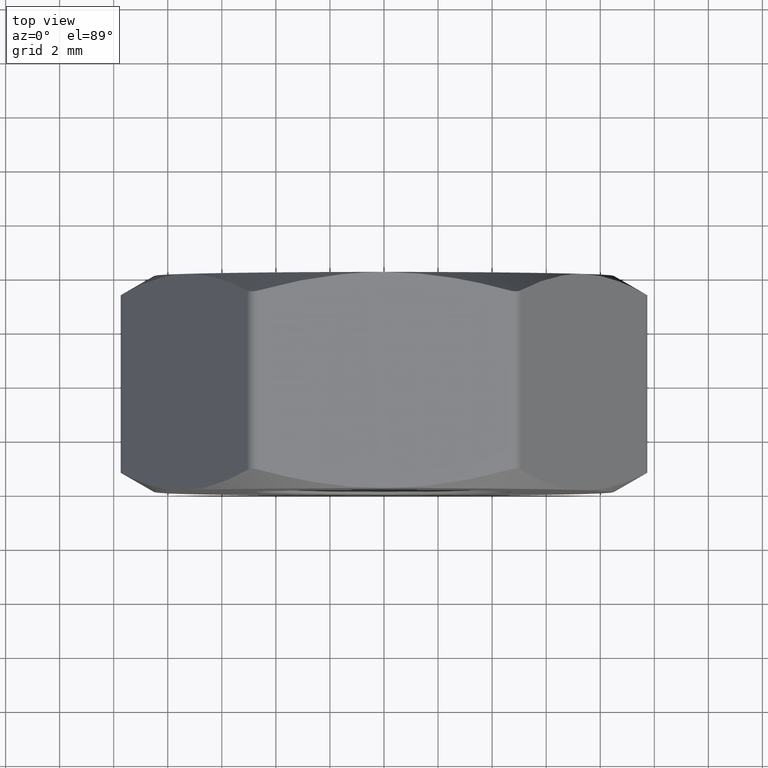
[diagram: clean part render]
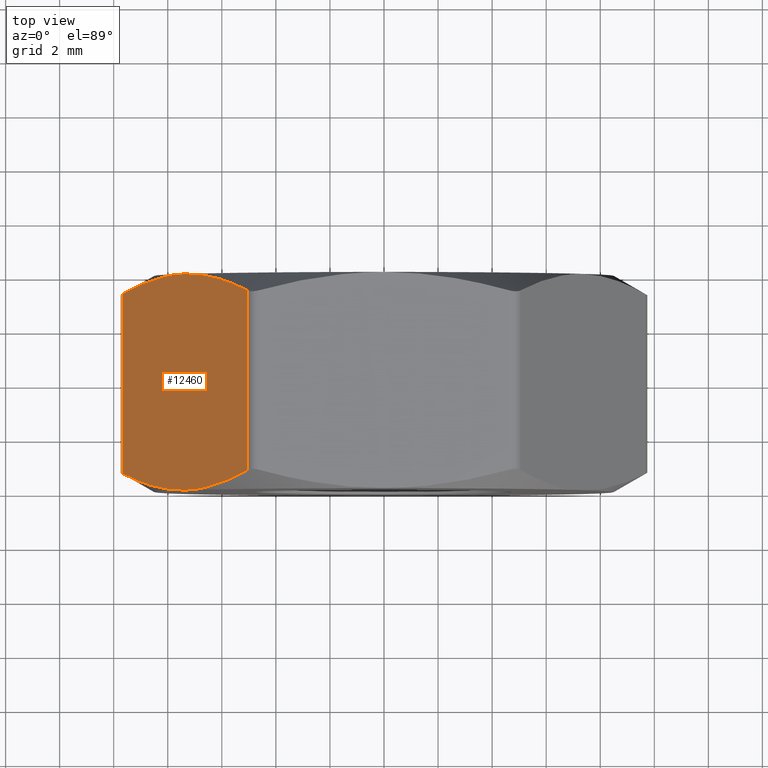
[diagram: same view with one face highlighted and labeled with its STEP entity id]
A machine part, top view. The second image highlights one B-rep face of the part: STEP entity #12460.
In plain terms, the highlighted planar face has unit normal (0.866, 0, -0.5).
Its self-contained STEP definition (entity closure, byte-faithful):
#85 = EDGE_CURVE ( 'NONE', #9155, #127, #4038, .T. ) ;
#97 = LINE ( 'NONE', #2320, #5485 ) ;
#127 = VERTEX_POINT ( 'NONE', #8834 ) ;
#508 = CARTESIAN_POINT ( 'NONE',  ( -5.051814855409220200, -3.322278594739817200, 8.250000000000000000 ) ) ;
#1096 = CARTESIAN_POINT ( 'NONE',  ( -9.814954576223636100, 4.000000000000000000, -3.519792685048961300E-015 ) ) ;
#1566 = CARTESIAN_POINT ( 'NONE',  ( -8.142893031566083900, 3.922654203673382200, 2.896095548728974600 ) ) ;
#1860 = DIRECTION ( 'NONE',  ( -0.0000000000000000000, 1.000000000000000000, -0.0000000000000000000 ) ) ;
#2180 = VERTEX_POINT ( 'NONE', #14304 ) ;
#2320 = CARTESIAN_POINT ( 'NONE',  ( -9.670617008926228700, 4.000000000000000000, 0.2499999999999972500 ) ) ;
#2846 = ORIENTED_EDGE ( 'NONE', *, *, #3013, .T. ) ;
#3013 = EDGE_CURVE ( 'NONE', #2180, #7835, #97, .T. ) ;
#3082 = ORIENTED_EDGE ( 'NONE', *, *, #3139, .T. ) ;
#3139 = EDGE_CURVE ( 'NONE', #8929, #9155, #12425, .T. ) ;
#3518 = CARTESIAN_POINT ( 'NONE',  ( -8.911804254728645300, -3.701163182834507300, 1.564302243701488600 ) ) ;
#3599 = CARTESIAN_POINT ( 'NONE',  ( -7.361215932167729300, 4.000000000000000000, 4.250000000000000000 ) ) ;
#4020 = CARTESIAN_POINT ( 'NONE',  ( -5.051814855409220200, 4.000000000000000000, 8.250000000000000000 ) ) ;
#4038 = B_SPLINE_CURVE_WITH_KNOTS ( 'NONE', 3,
 ( #14477, #10873, #13147, #7021, #8524, #3599 ),
 .UNSPECIFIED., .F., .F.,
 ( 4, 2, 4 ),
 ( 0.0002975640376514574200, 0.002631682780503386500, 0.004965801523355316300 ),
 .UNSPECIFIED. ) ;
#4167 = B_SPLINE_CURVE_WITH_KNOTS ( 'NONE', 3,
 ( #12467, #5085, #8803, #6635, #6526, #12720, #5354, #508 ),
 .UNSPECIFIED., .F., .F.,
 ( 4, 2, 2, 4 ),
 ( 0.004965801523355315400, 0.006128321858666296900, 0.007290842193977277500, 0.009615882864599236900 ),
 .UNSPECIFIED. ) ;
#5085 = CARTESIAN_POINT ( 'NONE',  ( -7.165473669288208400, -4.000000000000007100, 4.589035544495824400 ) ) ;
#5142 = CARTESIAN_POINT ( 'NONE',  ( -7.361215932167729300, 4.000000000000000000, 4.250000000000000000 ) ) ;
#5154 = ORIENTED_EDGE ( 'NONE', *, *, #85, .T. ) ;
#5250 = CARTESIAN_POINT ( 'NONE',  ( -7.556958195047243100, 4.000000000000007100, 3.910964455504173800 ) ) ;
#5354 = CARTESIAN_POINT ( 'NONE',  ( -5.428956315356685100, -3.530202177888617700, 7.596771829730290200 ) ) ;
#5485 = VECTOR ( 'NONE', #15811, 1000.000000000000000 ) ;
#5601 = EDGE_CURVE ( 'NONE', #7835, #11556, #8164, .T. ) ;
#5805 = CARTESIAN_POINT ( 'NONE',  ( -7.361215932167729300, -4.000000000000000000, 4.250000000000000000 ) ) ;
#5974 = PLANE ( 'NONE',  #14611 ) ;
#6325 = CARTESIAN_POINT ( 'NONE',  ( -9.670617008926228700, 3.322278594739816800, 0.2499999999999960000 ) ) ;
#6427 = CARTESIAN_POINT ( 'NONE',  ( -8.336297064518998200, 3.877050562629694500, 2.561109937265797100 ) ) ;
#6526 = CARTESIAN_POINT ( 'NONE',  ( -6.386134799816450600, -3.877050562629695800, 5.938890062734198900 ) ) ;
#6635 = CARTESIAN_POINT ( 'NONE',  ( -6.579538832769365800, -3.922654203673382200, 5.603904451271022300 ) ) ;
#7021 = CARTESIAN_POINT ( 'NONE',  ( -6.579776135164546100, 3.936145617773010300, 5.603493431465809100 ) ) ;
#7174 = EDGE_LOOP ( 'NONE', ( #7235, #2846, #13847, #10917, #3082, #5154 ) ) ;
#7235 = ORIENTED_EDGE ( 'NONE', *, *, #14818, .T. ) ;
#7835 = VERTEX_POINT ( 'NONE', #8521 ) ;
#8164 = B_SPLINE_CURVE_WITH_KNOTS ( 'NONE', 3,
 ( #8496, #9556, #3518, #13226, #8389, #15677 ),
 .UNSPECIFIED., .F., .F.,
 ( 4, 2, 4 ),
 ( 0.0002975640376514581800, 0.002631682780503387000, 0.004965801523355315400 ),
 .UNSPECIFIED. ) ;
#8389 = CARTESIAN_POINT ( 'NONE',  ( -7.754229000995558800, -4.000000000000008000, 3.569281396751624100 ) ) ;
#8408 = FACE_OUTER_BOUND ( 'NONE', #7174, .T. ) ;
#8496 = CARTESIAN_POINT ( 'NONE',  ( -9.670617008926846800, -3.322278594739477100, 0.2499999999989278300 ) ) ;
#8521 = CARTESIAN_POINT ( 'NONE',  ( -9.670617008926846800, -3.322278594739477100, 0.2499999999989278300 ) ) ;
#8524 = CARTESIAN_POINT ( 'NONE',  ( -6.968202863339890000, 4.000000000000008000, 4.930718603248372700 ) ) ;
#8803 = CARTESIAN_POINT ( 'NONE',  ( -6.968807060097649500, -3.984157063911049500, 4.929672103766161100 ) ) ;
#8834 = CARTESIAN_POINT ( 'NONE',  ( -7.361215932167729300, 4.000000000000000000, 4.250000000000000000 ) ) ;
#8929 = VERTEX_POINT ( 'NONE', #13994 ) ;
#9138 = VECTOR ( 'NONE', #1860, 1000.000000000000000 ) ;
#9155 = VERTEX_POINT ( 'NONE', #9576 ) ;
#9556 = CARTESIAN_POINT ( 'NONE',  ( -9.292573759524591600, -3.530699347556999400, 0.9047901154220691100 ) ) ;
#9576 = CARTESIAN_POINT ( 'NONE',  ( -5.051814855408602000, 3.322278594739476600, 8.250000000001071100 ) ) ;
#9673 = DIRECTION ( 'NONE',  ( 0.8660254037844387100, 0.0000000000000000000, -0.5000000000000001100 ) ) ;
#10548 = B_SPLINE_CURVE_WITH_KNOTS ( 'NONE', 3,
 ( #5142, #5250, #13793, #1566, #6427, #14906, #12610, #6325 ),
 .UNSPECIFIED., .F., .F.,
 ( 4, 2, 2, 4 ),
 ( 0.004965801523355316300, 0.006128321858666296900, 0.007290842193977275700, 0.009615882864599238600 ),
 .UNSPECIFIED. ) ;
#10873 = CARTESIAN_POINT ( 'NONE',  ( -5.429858104810859000, 3.530699347556998100, 7.595209884577929700 ) ) ;
#10917 = ORIENTED_EDGE ( 'NONE', *, *, #14905, .T. ) ;
#11556 = VERTEX_POINT ( 'NONE', #5805 ) ;
#12425 = LINE ( 'NONE', #4020, #9138 ) ;
#12460 = ADVANCED_FACE ( 'NONE', ( #8408 ), #5974, .F. ) ;
#12467 = CARTESIAN_POINT ( 'NONE',  ( -7.361215932167729300, -4.000000000000000000, 4.250000000000000000 ) ) ;
#12610 = CARTESIAN_POINT ( 'NONE',  ( -9.293475548978763700, 3.530202177888618100, 0.9032281702697053700 ) ) ;
#12720 = CARTESIAN_POINT ( 'NONE',  ( -5.809205748559690200, -3.700599545140477200, 6.938160491873418300 ) ) ;
#13147 = CARTESIAN_POINT ( 'NONE',  ( -5.810627609606807000, 3.701163182834506000, 6.935697756298510300 ) ) ;
#13226 = CARTESIAN_POINT ( 'NONE',  ( -8.142655729170904500, -3.936145617773010800, 2.896506568534186400 ) ) ;
#13793 = CARTESIAN_POINT ( 'NONE',  ( -7.753624804237800200, 3.984157063911049500, 3.570327896233834100 ) ) ;
#13847 = ORIENTED_EDGE ( 'NONE', *, *, #5601, .T. ) ;
#13994 = CARTESIAN_POINT ( 'NONE',  ( -5.051814855409220200, -3.322278594739817200, 8.250000000000000000 ) ) ;
#14304 = CARTESIAN_POINT ( 'NONE',  ( -9.670617008926228700, 3.322278594739816800, 0.2499999999999960000 ) ) ;
#14477 = CARTESIAN_POINT ( 'NONE',  ( -5.051814855408602000, 3.322278594739476600, 8.250000000001071100 ) ) ;
#14611 = AXIS2_PLACEMENT_3D ( 'NONE', #1096, #9673, #15639 ) ;
#14818 = EDGE_CURVE ( 'NONE', #127, #2180, #10548, .T. ) ;
#14905 = EDGE_CURVE ( 'NONE', #11556, #8929, #4167, .T. ) ;
#14906 = CARTESIAN_POINT ( 'NONE',  ( -8.913226115775758600, 3.700599545140475800, 1.561839508126577500 ) ) ;
#15639 = DIRECTION ( 'NONE',  ( -0.5000000000000000000, 0.0000000000000000000, -0.8660254037844386000 ) ) ;
#15677 = CARTESIAN_POINT ( 'NONE',  ( -7.361215932167729300, -4.000000000000000000, 4.250000000000000000 ) ) ;
#15811 = DIRECTION ( 'NONE',  ( 0.0000000000000000000, -1.000000000000000000, 0.0000000000000000000 ) ) ;